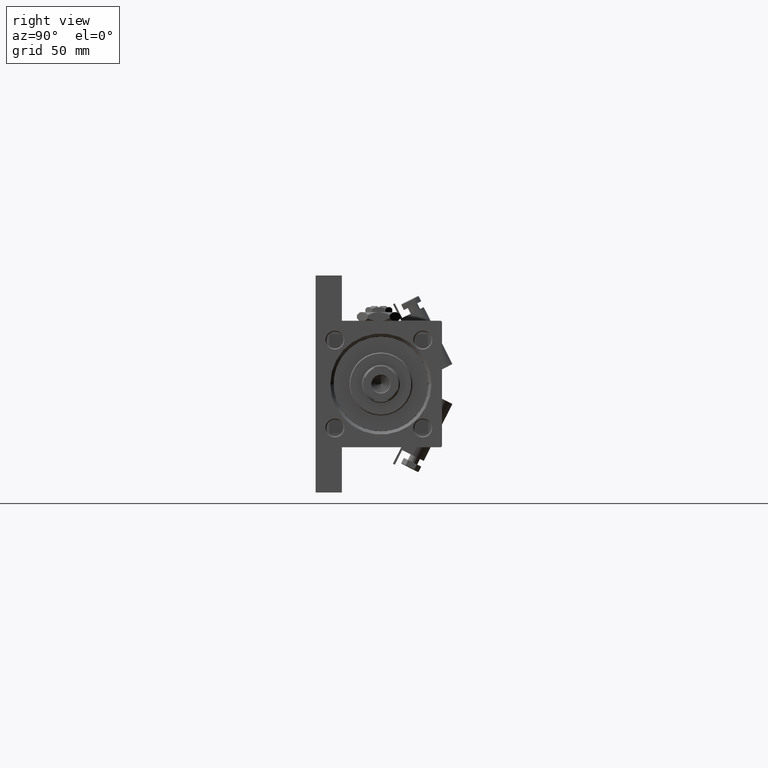
[diagram: clean part render]
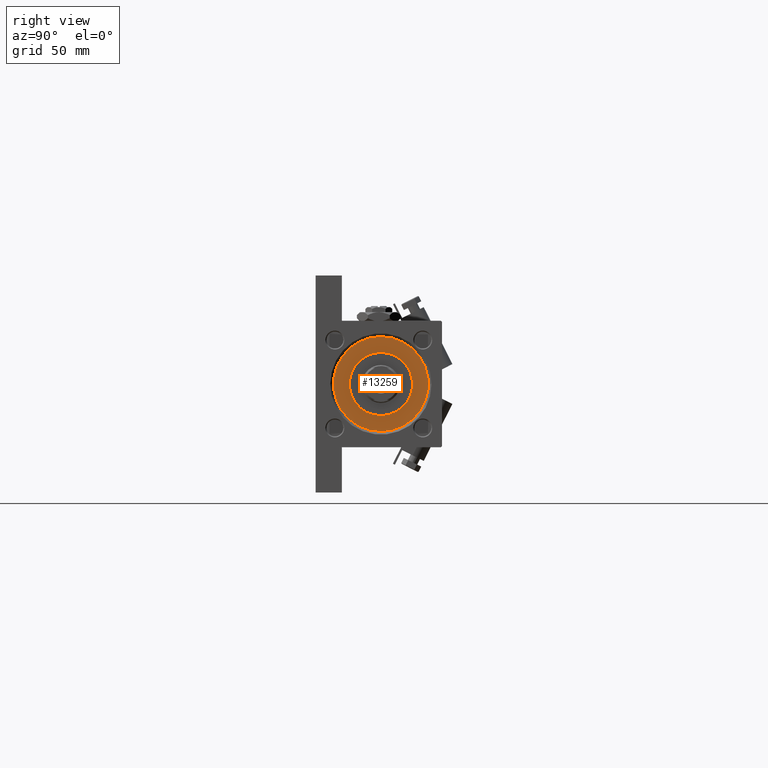
[diagram: same view with one face highlighted and labeled with its STEP entity id]
A machine part, right view. The second image highlights one B-rep face of the part: STEP entity #13259.
In plain terms, the highlighted planar face has unit normal (1, 0, 0).
Its self-contained STEP definition (entity closure, byte-faithful):
#353 = DIRECTION ( 'NONE',  ( 0.000000000000000000, 0.000000000000000000, 1.000000000000000000 ) ) ;
#606 = DIRECTION ( 'NONE',  ( 1.000000000000000000, 0.000000000000000000, -0.000000000000000000 ) ) ;
#1643 = CARTESIAN_POINT ( 'NONE',  ( 15.00000000000000000, 1.836970198721029589E-15, 28.69999999999999929 ) ) ;
#2948 = EDGE_LOOP ( 'NONE', ( #46737, #43535 ) ) ;
#3506 = EDGE_CURVE ( 'NONE', #44560, #41531, #18995, .T. ) ;
#4761 = DIRECTION ( 'NONE',  ( 0.000000000000000000, 0.000000000000000000, 1.000000000000000000 ) ) ;
#6698 = AXIS2_PLACEMENT_3D ( 'NONE', #51551, #15655, #11730 ) ;
#8470 = PLANE ( 'NONE',  #15183 ) ;
#8841 = ORIENTED_EDGE ( 'NONE', *, *, #19281, .F. ) ;
#8883 = CARTESIAN_POINT ( 'NONE',  ( -15.00000000000000000, 0.000000000000000000, 28.69999999999999929 ) ) ;
#8900 = DIRECTION ( 'NONE',  ( 0.000000000000000000, 0.000000000000000000, 1.000000000000000000 ) ) ;
#9080 = DIRECTION ( 'NONE',  ( 0.000000000000000000, 0.000000000000000000, 1.000000000000000000 ) ) ;
#9660 = EDGE_CURVE ( 'NONE', #12671, #21553, #36806, .T. ) ;
#11730 = DIRECTION ( 'NONE',  ( 1.000000000000000000, 0.000000000000000000, 0.000000000000000000 ) ) ;
#12671 = VERTEX_POINT ( 'NONE', #1643 ) ;
#13259 = ADVANCED_FACE ( 'NONE', ( #30044, #32293 ), #8470, .T. ) ;
#14589 = AXIS2_PLACEMENT_3D ( 'NONE', #40574, #8900, #32984 ) ;
#15183 = AXIS2_PLACEMENT_3D ( 'NONE', #51718, #353, #606 ) ;
#15655 = DIRECTION ( 'NONE',  ( 0.000000000000000000, 0.000000000000000000, 1.000000000000000000 ) ) ;
#17402 = EDGE_LOOP ( 'NONE', ( #8841, #40347 ) ) ;
#18605 = AXIS2_PLACEMENT_3D ( 'NONE', #45089, #4761, #29364 ) ;
#18995 = CIRCLE ( 'NONE', #22354, 22.50000000000000355 ) ;
#19281 = EDGE_CURVE ( 'NONE', #21553, #12671, #44558, .T. ) ;
#21553 = VERTEX_POINT ( 'NONE', #8883 ) ;
#22354 = AXIS2_PLACEMENT_3D ( 'NONE', #44962, #9080, #25054 ) ;
#24641 = CARTESIAN_POINT ( 'NONE',  ( -22.50000000000000355, 0.000000000000000000, 28.69999999999999929 ) ) ;
#25054 = DIRECTION ( 'NONE',  ( 1.000000000000000000, 0.000000000000000000, 0.000000000000000000 ) ) ;
#26996 = CARTESIAN_POINT ( 'NONE',  ( 22.50000000000000355, 2.755455298081545172E-15, 28.69999999999999929 ) ) ;
#29364 = DIRECTION ( 'NONE',  ( 1.000000000000000000, 0.000000000000000000, 0.000000000000000000 ) ) ;
#30044 = FACE_BOUND ( 'NONE', #17402, .T. ) ;
#32293 = FACE_OUTER_BOUND ( 'NONE', #2948, .T. ) ;
#32984 = DIRECTION ( 'NONE',  ( 1.000000000000000000, 0.000000000000000000, 0.000000000000000000 ) ) ;
#33817 = EDGE_CURVE ( 'NONE', #41531, #44560, #35482, .T. ) ;
#35482 = CIRCLE ( 'NONE', #14589, 22.50000000000000355 ) ;
#36806 = CIRCLE ( 'NONE', #6698, 15.00000000000000000 ) ;
#40347 = ORIENTED_EDGE ( 'NONE', *, *, #9660, .F. ) ;
#40574 = CARTESIAN_POINT ( 'NONE',  ( 0.000000000000000000, 0.000000000000000000, 28.69999999999999929 ) ) ;
#41531 = VERTEX_POINT ( 'NONE', #26996 ) ;
#43535 = ORIENTED_EDGE ( 'NONE', *, *, #33817, .T. ) ;
#44558 = CIRCLE ( 'NONE', #18605, 15.00000000000000000 ) ;
#44560 = VERTEX_POINT ( 'NONE', #24641 ) ;
#44962 = CARTESIAN_POINT ( 'NONE',  ( 0.000000000000000000, 0.000000000000000000, 28.69999999999999929 ) ) ;
#45089 = CARTESIAN_POINT ( 'NONE',  ( 0.000000000000000000, 0.000000000000000000, 28.69999999999999929 ) ) ;
#46737 = ORIENTED_EDGE ( 'NONE', *, *, #3506, .T. ) ;
#51551 = CARTESIAN_POINT ( 'NONE',  ( 0.000000000000000000, 0.000000000000000000, 28.69999999999999929 ) ) ;
#51718 = CARTESIAN_POINT ( 'NONE',  ( 0.000000000000000000, 0.000000000000000000, 28.69999999999999929 ) ) ;